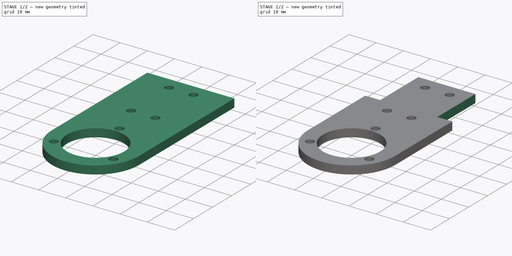
[diagram: build sequence overview — one tinted view per stage of 2, left to right]
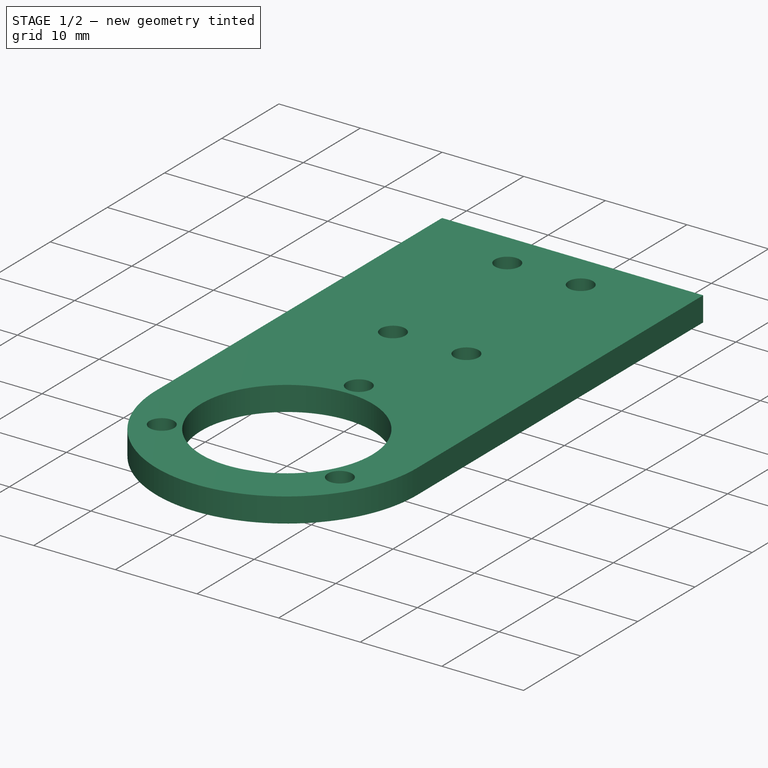
[diagram: stage 1 of 2 — iso view after this stage's code; geometry added in this stage tinted green]
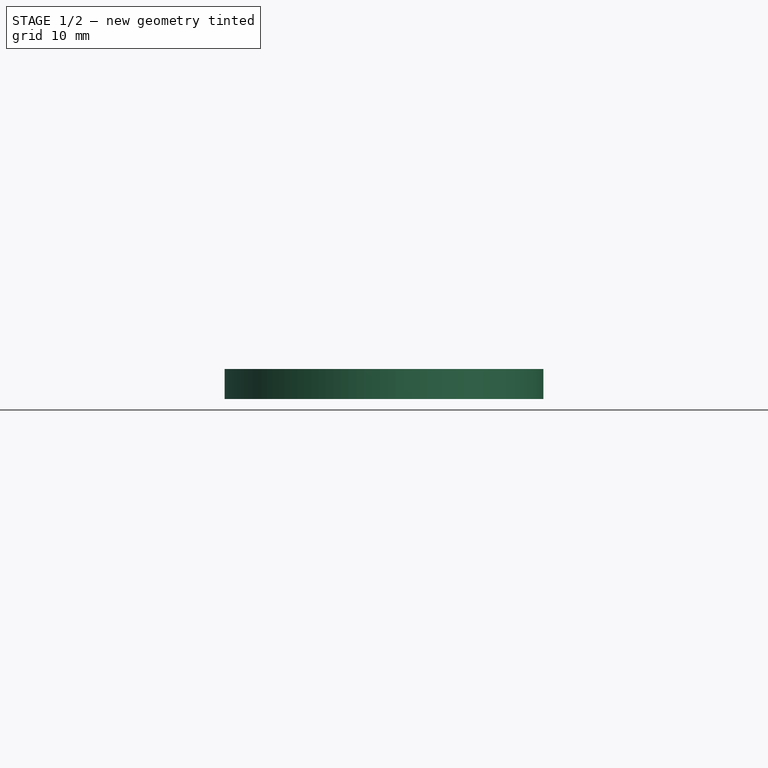
[diagram: stage 1 of 2 — front view after this stage's code; geometry added in this stage tinted green]
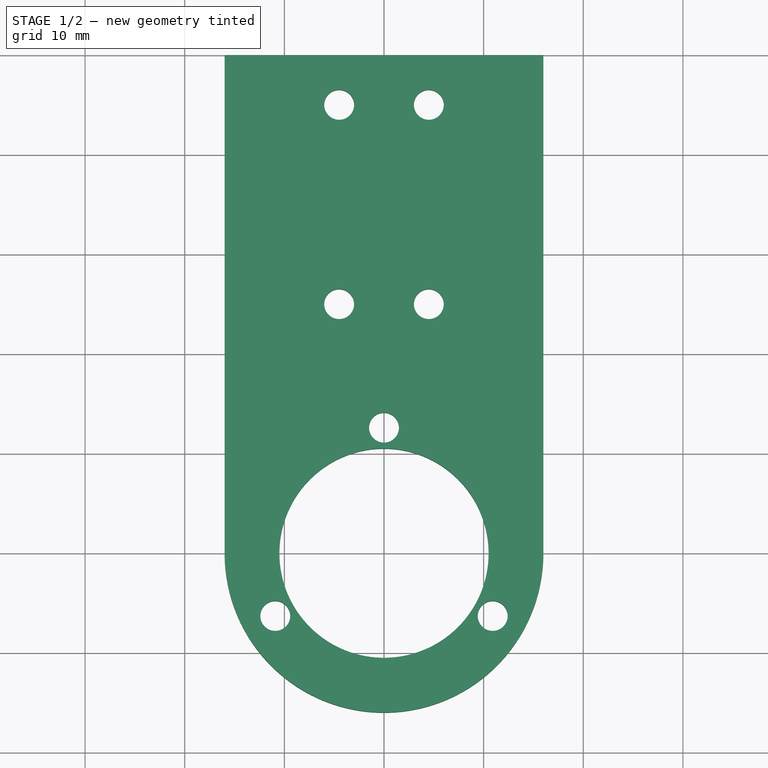
[diagram: stage 1 of 2 — top view after this stage's code; geometry added in this stage tinted green]
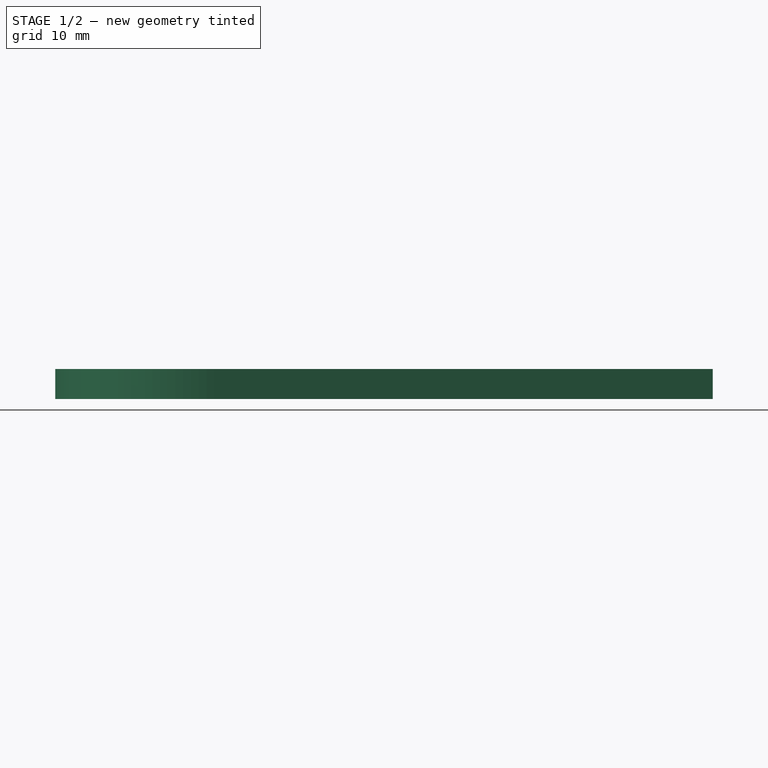
[diagram: stage 1 of 2 — right view after this stage's code; geometry added in this stage tinted green]
FCSTD DOCUMENT  (FreeCAD 0.16R6707 (Git))
Label: support_bille
License: All rights reserved
LicenseURL: http://en.wikipedia.org/wiki/All_rights_reserved
objects: Sketcher::SketchObject×2, PartDesign::Pad×1, PartDesign::Pocket×1
note: 6 computed .brp shape members not serialized (recipe doc carries the construction recipe); baked Part::Feature solids carry a one-line shape summary decoded from their .brp

FEATURE [Sketcher::SketchObject] Sketch
  sketch-geometry (19):
    g0: ArcOfCircle CenterX=0 CenterY=0 CenterZ=0 NormalX=0 NormalY=0 NormalZ=1 Radius=16 StartAngle=3.14159 EndAngle=6.28319
    g1: LineSegment StartX=-16 StartY=0 StartZ=0 EndX=-16 EndY=50 EndZ=0
    g2: LineSegment StartX=-16 StartY=50 StartZ=0 EndX=16 EndY=50 EndZ=0
    g3: LineSegment StartX=16 StartY=50 StartZ=0 EndX=16 EndY=0 EndZ=0
    g4: GeomPoint [constr] X=-10.9119 Y=-6.3 Z=0
    g5: GeomPoint [constr] X=10.9119 Y=-6.3 Z=0
    g6: GeomPoint [constr] X=0 Y=12.6 Z=0
    g7: Circle CenterX=0 CenterY=12.6 CenterZ=0 NormalX=0 NormalY=0 NormalZ=1 Radius=1.5
    g8: Circle CenterX=10.9119 CenterY=-6.3 CenterZ=0 NormalX=0 NormalY=0 NormalZ=1 Radius=1.5
    g9: Circle CenterX=-10.9119 CenterY=-6.3 CenterZ=0 NormalX=0 NormalY=0 NormalZ=1 Radius=1.5
    g10: Circle CenterX=0 CenterY=0 CenterZ=0 NormalX=0 NormalY=0 NormalZ=1 Radius=10.5
    g11: GeomPoint [constr] X=-4.5 Y=45 Z=0
    g12: GeomPoint [constr] X=4.5 Y=45 Z=0
    g13: GeomPoint [constr] X=-4.5 Y=25 Z=0
    g14: GeomPoint [constr] X=4.5 Y=25 Z=0
    g15: Circle CenterX=-4.5 CenterY=45 CenterZ=0 NormalX=0 NormalY=0 NormalZ=1 Radius=1.5
    g16: Circle CenterX=4.5 CenterY=45 CenterZ=0 NormalX=0 NormalY=0 NormalZ=1 Radius=1.5
    g17: Circle CenterX=-4.5 CenterY=25 CenterZ=0 NormalX=0 NormalY=0 NormalZ=1 Radius=1.5
    g18: Circle CenterX=4.5 CenterY=25 CenterZ=0 NormalX=0 NormalY=0 NormalZ=1 Radius=1.5
  constraints (37):
    c: Coincident(g0,g-1)
    c: PointOnObject(g0,g-1)
    c: PointOnObject(g0,g-1)
    c: DistanceX(g-1,g0) = 16
    c: Coincident(g1,g0)
    c: Vertical(g1)
    c: Coincident(g2,g1)
    c: Horizontal(g2)
    c: Distance(g2) = 32
    c: Coincident(g3,g2)
    c: Coincident(g3,g0)
    c: PointOnObject(g6,g-2)
    c: Coincident(g7,g6)
    c: Coincident(g8,g5)
    c: Coincident(g9,g4)
    c: Radius(g7) = 1.5
    c: Equal(g7,g8)
    c: Equal(g7,g9)
    c: Distance(g1) = 50
    c: Coincident(g10,g-1)
    c: Radius(g10) = 10.5
    c: DistanceX(g11,g12) = 9
    c: DistanceX(g11,g13) = 0
    c: DistanceX(g12,g14) = 0
    c: DistanceY(g14,g13) = 0
    c: DistanceY(g12,g11) = 0
    c: DistanceX(g11) = -4.5
    c: DistanceY(g11,g1) = 5
    c: DistanceY(g13,g11) = 20
    c: Coincident(g15,g11)
    c: Coincident(g16,g12)
    c: Coincident(g17,g13)
    c: Coincident(g18,g14)
    c: Radius(g16) = 1.5
    c: Equal(g16,g15)
    c: Equal(g16,g17)
    c: Equal(g16,g18)
FEATURE [PartDesign::Pad] Pad
  Length = 3
  Length2 = 100
  Sketch = -> Sketch
  Type = 0
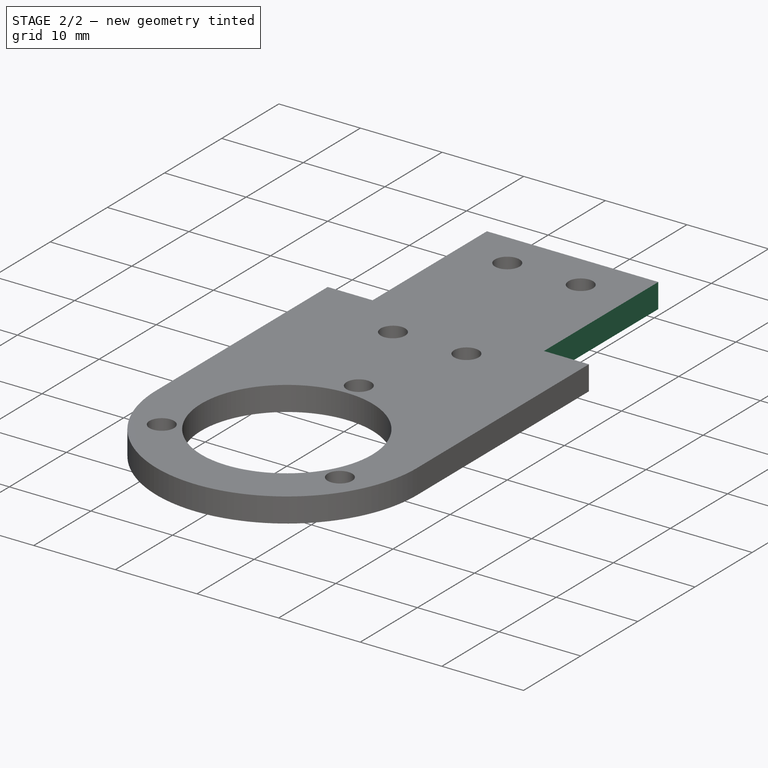
[diagram: stage 2 of 2 — iso view after this stage's code; geometry added in this stage tinted green]
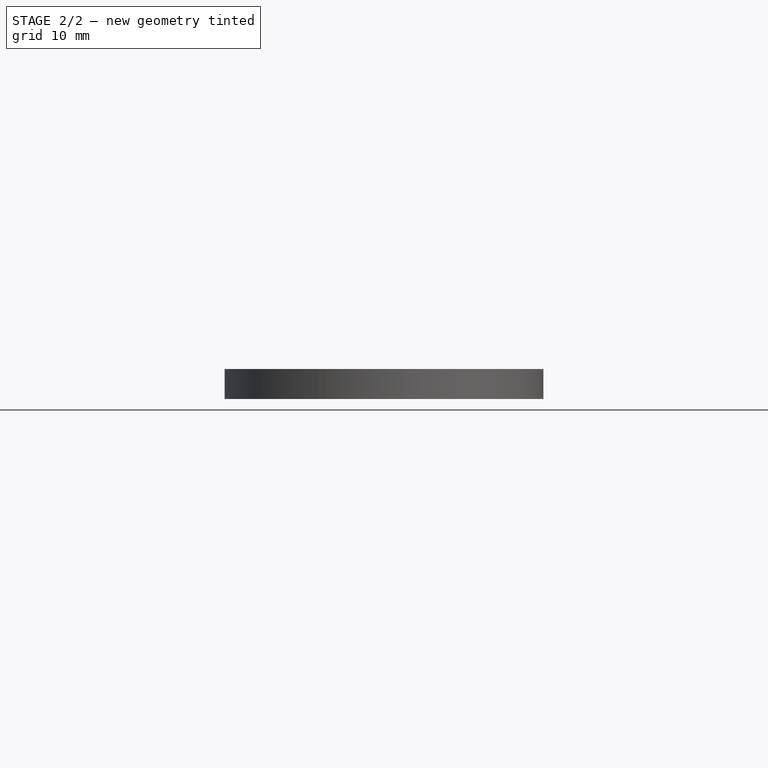
[diagram: stage 2 of 2 — front view after this stage's code; geometry added in this stage tinted green]
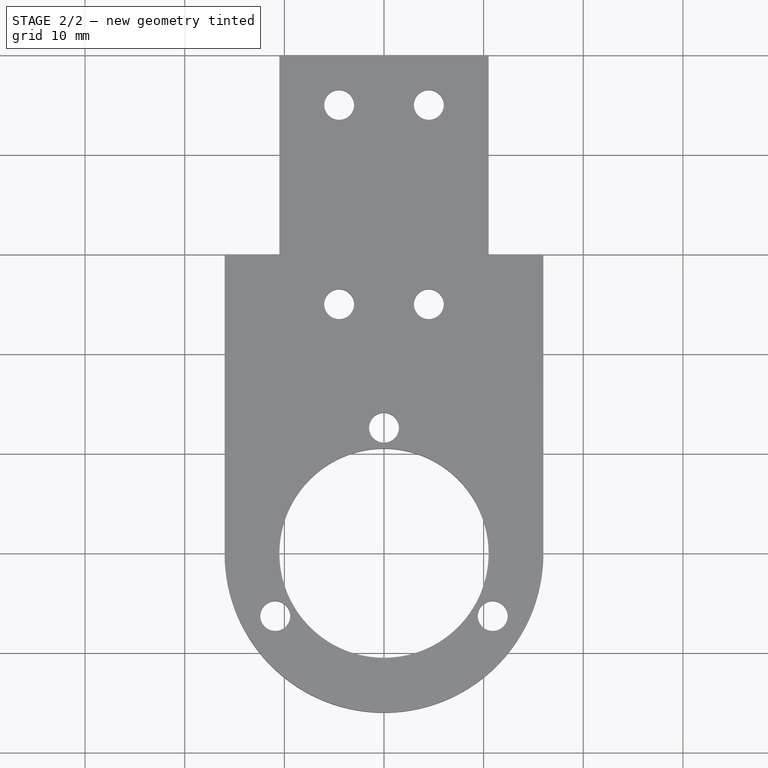
[diagram: stage 2 of 2 — top view after this stage's code; geometry added in this stage tinted green]
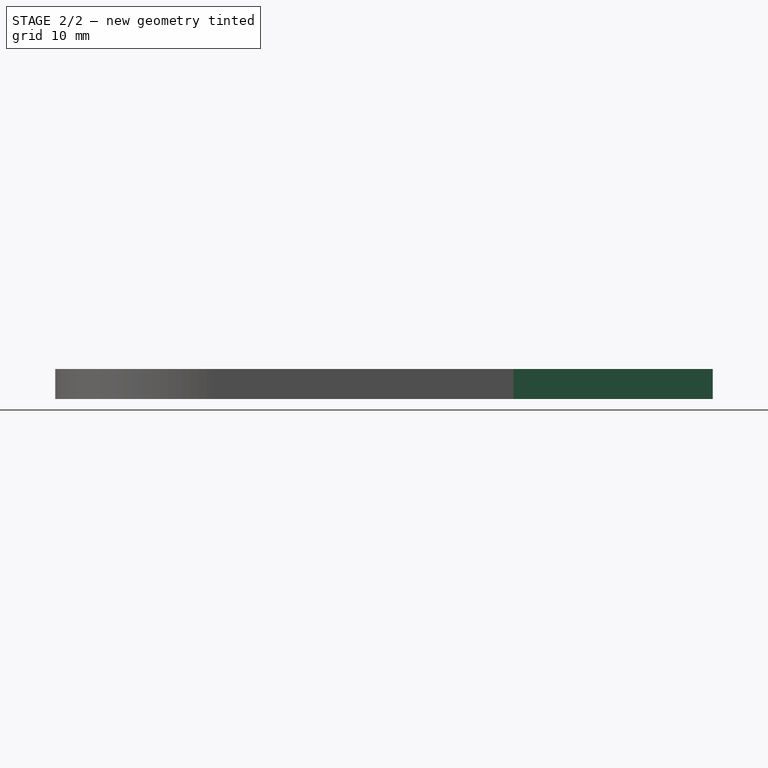
[diagram: stage 2 of 2 — right view after this stage's code; geometry added in this stage tinted green]
FEATURE [Sketcher::SketchObject] Sketch001
  Placement = pos=(0,0,3) rot=(0,0,1;0rad)
  Support = -> Pad [Face14]
  sketch-geometry (10):
    g0: GeomPoint [constr] X=-16 Y=50 Z=0
    g1: GeomPoint [constr] X=16 Y=50 Z=0
    g2: LineSegment StartX=-16 StartY=50 StartZ=0 EndX=-10.5 EndY=50 EndZ=0
    g3: LineSegment StartX=-10.5 StartY=50 StartZ=0 EndX=-10.5 EndY=30 EndZ=0
    g4: LineSegment StartX=-10.5 StartY=30 StartZ=0 EndX=-16 EndY=30 EndZ=0
    g5: LineSegment StartX=-16 StartY=30 StartZ=0 EndX=-16 EndY=50 EndZ=0
    g6: LineSegment StartX=16 StartY=50 StartZ=0 EndX=10.5 EndY=50 EndZ=0
    g7: LineSegment StartX=10.5 StartY=50 StartZ=0 EndX=10.5 EndY=30 EndZ=0
    g8: LineSegment StartX=10.5 StartY=30 StartZ=0 EndX=16 EndY=30 EndZ=0
    g9: LineSegment StartX=16 StartY=30 StartZ=0 EndX=16 EndY=50 EndZ=0
  constraints (26):
    c: DistanceY(g0) = 50
    c: DistanceX(g0) = -16
    c: DistanceY(g1,g0) = 0
    c: DistanceX(g1) = 16
    c: Coincident(g2,g3)
    c: Coincident(g3,g4)
    c: Coincident(g4,g5)
    c: Coincident(g5,g2)
    c: Horizontal(g2)
    c: Horizontal(g4)
    c: Vertical(g3)
    c: Vertical(g5)
    c: Coincident(g2,g0)
    c: Coincident(g6,g7)
    c: Coincident(g7,g8)
    c: Coincident(g8,g9)
    c: Coincident(g9,g6)
    c: Horizontal(g6)
    c: Horizontal(g8)
    c: Vertical(g7)
    c: Vertical(g9)
    c: Coincident(g6,g1)
    c: Distance(g4) = 5.5
    c: Distance(g8) = 5.5
    c: Distance(g3) = 20
    c: Distance(g7) = 20
FEATURE [PartDesign::Pocket] Pocket
  Length = 5
  Sketch = -> Sketch001
  Type = 1
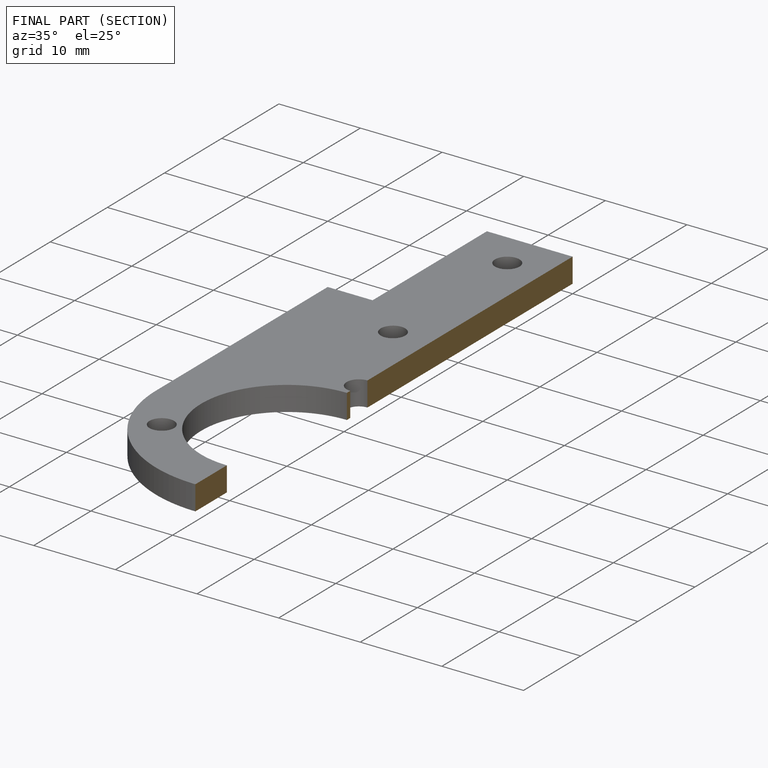
[diagram: finished part — half-section view (interior)]
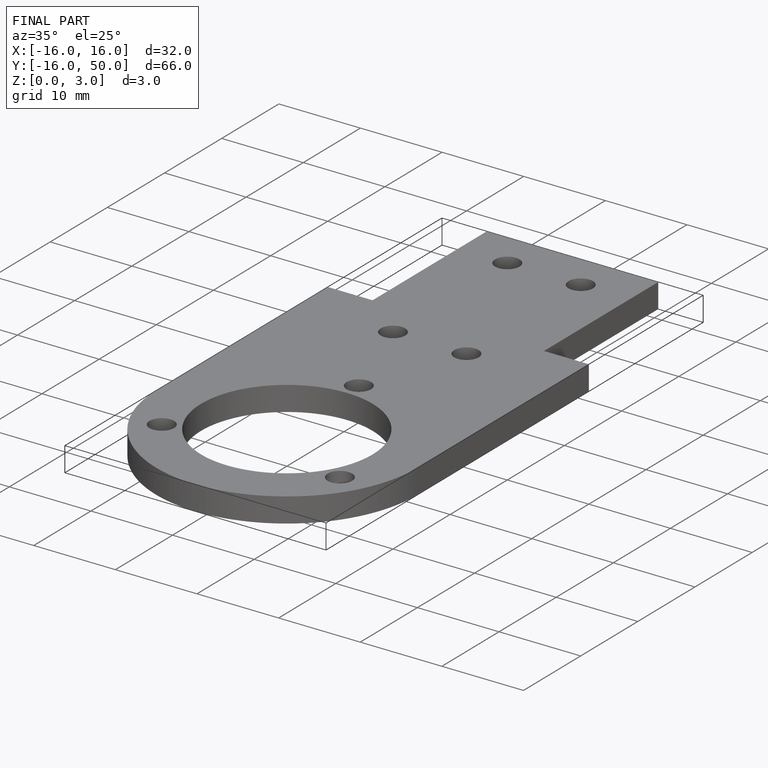
[diagram: finished part — iso view with bounding-box wireframe]
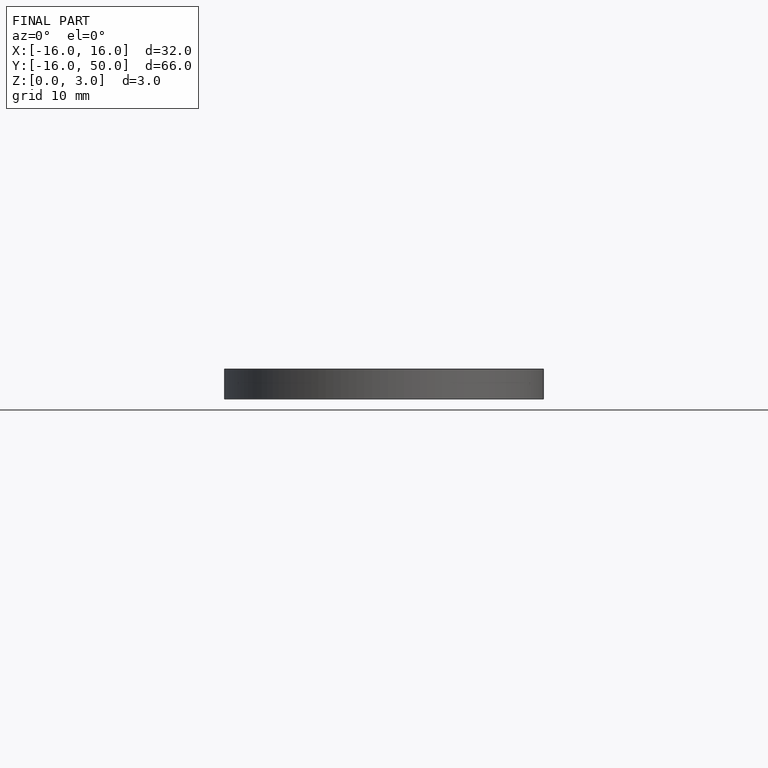
[diagram: finished part — front view with bounding-box wireframe]
